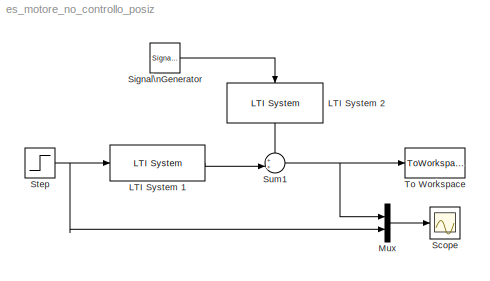
MODEL es_motore_no_controllo_posiz
KIND model
CONFIG AbsTol = auto
CONFIG FixedStep = auto
CONFIG MaxStep = auto
CONFIG RelTol = 1e-6
CONFIG Solver = ode45
CONFIG SolverMode = Auto
CONFIG StartTime = 0.0
CONFIG StopTime = 20
BLOCK [Reference] LTI System 1  REF=cstblocks/LTI System
  IC = [0]
  Ports = [1, 1, 0, 0, 0]
  SourceBlock = cstblocks/LTI System
  SourceType = LTI Block
  sys = F1/s
BLOCK [Reference] LTI System 2  REF=cstblocks/LTI System
  IC = [0]
  Ports = [1, 1, 0, 0, 0]
  SourceBlock = cstblocks/LTI System
  SourceType = LTI Block
  sys = F2/s
BLOCK [Mux] Mux
  DisplayOption = bar
  Inputs = 2
  Ports = [2, 1, 0, 0, 0]
BLOCK [Scope] Scope
  DataFormat = StructureWithTime
  Decimation = 1
  Floating = off
  Grid = on
  LimitMaxRows = on
  MaxRows = 5000
  NumInputPorts = 1
  Ports = [1, 0, 0, 0, 0]
  SampleInput = off
  SampleTime = 0
  SaveName = ScopeData
  SaveToWorkspace = off
  TickLabels = OneTimeTick
  TimeRange = auto
  YMax = 5
  YMin = -5
  ZoomMode = on
BLOCK [SignalGenerator] Signal\nGenerator
  Amplitude = 0.05
  Frequency = 0.1
  Units = Hertz
  WaveForm = square
BLOCK [Step] Step
  After = 1
  Before = 0
  SampleTime = 0
  Time = 0
BLOCK [Sum] Sum1
  IconShape = round
  Inputs = ++|
  Ports = [2, 1, 0, 0, 0]
  SaturateOnIntegerOverflow = on
BLOCK [ToWorkspace] To Workspace
  Buffer = inf
  Decimation = 1
  SampleTime = -1
  SaveFormat = Matrix
  VariableName = pos_ang
LINE LTI System 1:1 -> Sum1:2
LINE LTI System 2:1 -> Sum1:1
LINE Mux:1 -> Scope:1
LINE Signal\nGenerator:1 -> LTI System 2:1
NET Step:1 -> LTI System 1:1, Mux:2
NET Sum1:1 -> Mux:1, To Workspace:1
note: NET lines group one-source signal fan-out (src -> all destinations, sorted); 1:1 wires keep LINE
